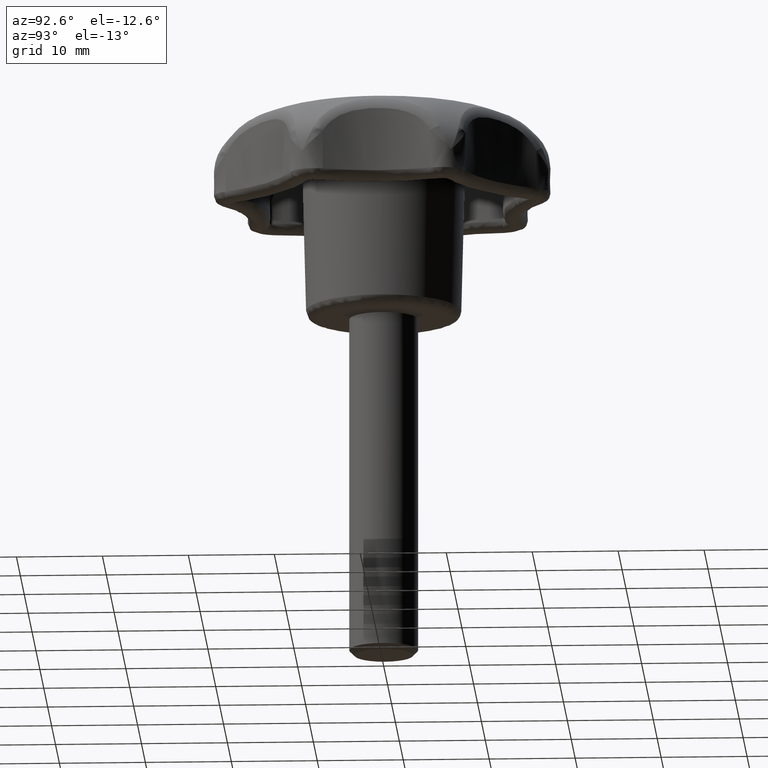
[diagram: clean part render]
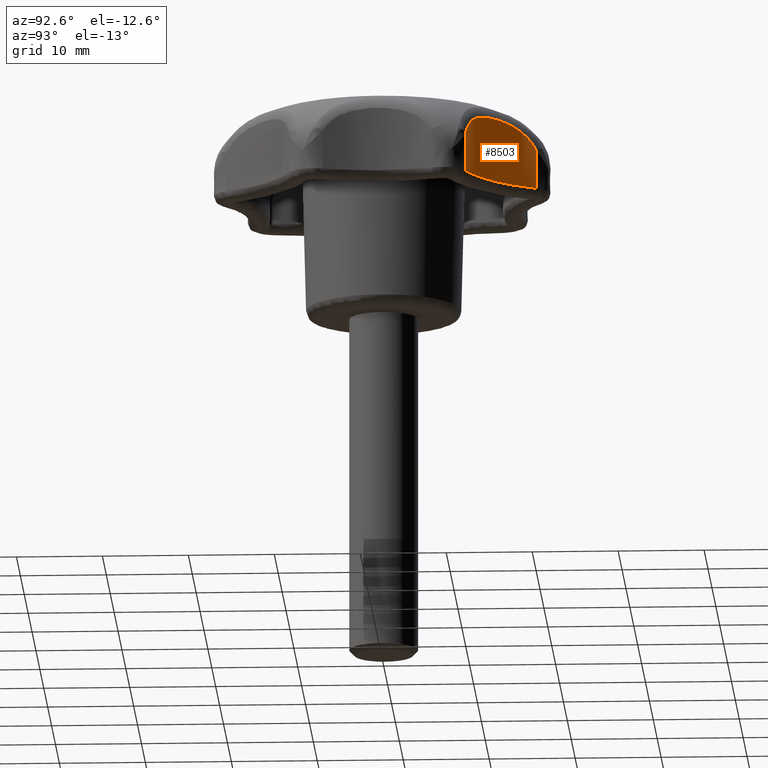
[diagram: same view with one face highlighted and labeled with its STEP entity id]
A machine part, auxiliary view. The second image highlights one B-rep face of the part: STEP entity #8503.
In plain terms, the highlighted face is a freeform B-spline surface patch.
Its self-contained STEP definition (entity closure, byte-faithful):
#4659=CARTESIAN_POINT('',(6.386493594074760,18.064099481105000,14.000000000000121));
#4660=VERTEX_POINT('',#4659);
#4791=CARTESIAN_POINT('',(16.190065745681299,10.246010887278899,14.000000000000121));
#4792=VERTEX_POINT('',#4791);
#4822=CARTESIAN_POINT('',(16.190065745681299,10.246010887278899,14.000000000000121));
#4823=CARTESIAN_POINT('',(9.737287684362029,12.210172921207995,14.000000000000115));
#4824=CARTESIAN_POINT('',(6.386493594074741,18.064099481104989,14.000000000000121));
#4832=(BOUNDED_CURVE()B_SPLINE_CURVE(2,(#4822,#4823,#4824),.UNSPECIFIED.,.F.,.U.)CURVE()GEOMETRIC_REPRESENTATION_ITEM()QUASI_UNIFORM_CURVE()RATIONAL_B_SPLINE_CURVE((1.0,0.929508310548779,1.0))REPRESENTATION_ITEM(''));
#4833=EDGE_CURVE('',#4792,#4660,#4832,.T.);
#6804=CARTESIAN_POINT('',(6.386493594074760,18.064099481105000,18.449536333602250));
#6805=VERTEX_POINT('',#6804);
#7046=CARTESIAN_POINT('',(16.190065745681299,10.246010887278899,18.449537729506851));
#7047=VERTEX_POINT('',#7046);
#7061=CARTESIAN_POINT('',(6.386493594074760,18.064099481105000,18.449536333602250));
#7062=CARTESIAN_POINT('',(6.461009213518576,17.933918709851710,18.724808553252359));
#7063=CARTESIAN_POINT('',(6.549328742009964,17.783552674995079,18.980416609653620));
#7064=CARTESIAN_POINT('',(6.703970696364555,17.531636849737978,19.336399882513721));
#7065=CARTESIAN_POINT('',(6.759232821654340,17.443245904756520,19.450463805623240));
#7066=CARTESIAN_POINT('',(6.848048594483785,17.304358264259211,19.614740555648840));
#7067=CARTESIAN_POINT('',(6.878642014134869,17.257011363362999,19.668361940667680));
#7068=CARTESIAN_POINT('',(6.941875978913854,17.160262004500591,19.773331655189661));
#7069=CARTESIAN_POINT('',(6.974557987169592,17.110800621065671,19.824727165410049));
#7070=CARTESIAN_POINT('',(7.141510336753920,16.861081282741011,20.073516651981809));
#7071=CARTESIAN_POINT('',(7.287600953781092,16.651753927779769,20.248603987769439));
#7072=CARTESIAN_POINT('',(7.526014623637359,16.327657571293461,20.480302371450669));
#7073=CARTESIAN_POINT('',(7.608704493231237,16.217929118728531,20.552358849332109));
#7074=CARTESIAN_POINT('',(7.737665651024440,16.051239794046740,20.653163998627470));
#7075=CARTESIAN_POINT('',(7.781553138874564,15.995227519035920,20.685606103287341));
#7076=CARTESIAN_POINT('',(7.870595301137325,15.883068037954089,20.747864537653179));
#7077=CARTESIAN_POINT('',(7.915676064423677,15.827010999242161,20.777636945965870));
#7078=CARTESIAN_POINT('',(8.143854212509133,15.546966962340100,20.920132171745809));
#7079=CARTESIAN_POINT('',(8.335261069005876,15.323738101561251,21.013885576322188));
#7080=CARTESIAN_POINT('',(8.735418177896897,14.881537581633360,21.169262364888411));
#7081=CARTESIAN_POINT('',(8.944167056096346,14.662557015004650,21.230864384380592));
#7082=CARTESIAN_POINT('',(9.215919393270118,14.392691180933429,21.291190468953101));
#7083=CARTESIAN_POINT('',(9.270811629253348,14.338909590197400,21.302415481524481));
#7084=CARTESIAN_POINT('',(9.381683248799780,14.231754413047881,21.323245272924940));
#7085=CARTESIAN_POINT('',(9.437688360460319,14.178358759220041,21.332851525777979));
#7086=CARTESIAN_POINT('',(9.606440819104435,14.019653597941749,21.359188922195770));
#7087=CARTESIAN_POINT('',(9.720214706388735,13.915542027663109,21.373504933144339));
#7088=CARTESIAN_POINT('',(10.065330351196231,13.608236926286811,21.407545286699609));
#7089=CARTESIAN_POINT('',(10.300464166854120,13.410068433634811,21.418464150883970));
#7090=CARTESIAN_POINT('',(10.780772619736430,13.027005841697930,21.418494620169501));
#7091=CARTESIAN_POINT('',(11.025947519264291,12.842112120573450,21.407604137423210));
#7092=CARTESIAN_POINT('',(11.526324496217800,12.485613435198911,21.362478190667581));
#7093=CARTESIAN_POINT('',(11.781656417139500,12.313926587075279,21.328234558821510));
#7094=CARTESIAN_POINT('',(12.301859578554181,11.984322529496611,21.231526668566389));
#7095=CARTESIAN_POINT('',(12.562680113358940,11.828975089099661,21.169777939208700));
#7096=CARTESIAN_POINT('',(13.083734405001550,11.536677810400841,21.014256277063350));
#7097=CARTESIAN_POINT('',(13.343975638568489,11.399731976194991,20.920499195633312));
#7098=CARTESIAN_POINT('',(13.667164772665100,11.239851387259600,20.778372619066420));
#7099=CARTESIAN_POINT('',(13.731694680225340,11.208440682663589,20.748693353991840));
#7100=CARTESIAN_POINT('',(13.860484558477181,11.146746328551551,20.686670776926679));
#7101=CARTESIAN_POINT('',(13.924867426024591,11.116406053272691,20.654261735849008));
#7102=CARTESIAN_POINT('',(14.116575034675790,11.027508033411950,20.553285017462731));
#7103=CARTESIAN_POINT('',(14.242127786304501,10.971217681859020,20.481170098820488));
#7104=CARTESIAN_POINT('',(14.611224562947170,10.810827006071399,20.249581360814940));
#7105=CARTESIAN_POINT('',(14.847253804912571,10.715194714201600,20.074934838766310));
#7106=CARTESIAN_POINT('',(15.126557430462009,10.608434238733160,19.827687531872911));
#7107=CARTESIAN_POINT('',(15.181627822812500,10.587722115374451,19.776785484072050));
#7108=CARTESIAN_POINT('',(15.290090329693980,10.547548968346030,19.671958426032958));
#7109=CARTESIAN_POINT('',(15.343569888045989,10.528057795885109,19.617930479414799));
#7110=CARTESIAN_POINT('',(15.499799060755070,10.471963459818040,19.452793134178641));
#7111=CARTESIAN_POINT('',(15.598815007033201,10.437556594935790,19.338211241486320));
#7112=CARTESIAN_POINT('',(15.880056226619070,10.342411153271200,18.980923202221138));
#7113=CARTESIAN_POINT('',(16.046586965522479,10.289684933681791,18.724772077706341));
#7114=CARTESIAN_POINT('',(16.190065745681299,10.246010887278899,18.449537729506851));
#7115=B_SPLINE_CURVE_WITH_KNOTS('',3,(#7061,#7062,#7063,#7064,#7065,#7066,#7067,#7068,#7069,#7070,#7071,#7072,#7073,#7074,#7075,#7076,#7077,#7078,#7079,#7080,#7081,#7082,#7083,#7084,#7085,#7086,#7087,#7088,#7089,#7090,#7091,#7092,#7093,#7094,#7095,#7096,#7097,#7098,#7099,#7100,#7101,#7102,#7103,#7104,#7105,#7106,#7107,#7108,#7109,#7110,#7111,#7112,#7113,#7114),.UNSPECIFIED.,.F.,.U.,(4,2,2,2,2,2,2,2,2,2,2,2,2,2,2,2,2,2,2,2,2,2,2,2,2,2,4),(0.0,0.062500000000000,0.093750000000001,0.109375000000001,0.125000000000001,0.187500000000000,0.218750000000000,0.234375000000000,0.250000000000000,0.312499999999999,0.374999999999999,0.390624999999999,0.406249999999999,0.437499999999999,0.500000000000000,0.562500000000000,0.625000000000000,0.687500000000001,0.750000000000001,0.765625000000001,0.781250000000001,0.812500000000001,0.875000000000002,0.890625000000001,0.906250000000001,0.937500000000001,1.0),.UNSPECIFIED.);
#7116=EDGE_CURVE('',#6805,#7047,#7115,.T.);
#8475=CARTESIAN_POINT('',(6.087634910912457,18.609086208690190,21.603941386520127));
#8476=CARTESIAN_POINT('',(6.087634910912457,18.609086208690190,13.809901465337116));
#8477=CARTESIAN_POINT('',(9.562985048213054,11.987248434442678,21.603941386520134));
#8478=CARTESIAN_POINT('',(9.562985048213054,11.987248434442678,13.809901465337118));
#8479=CARTESIAN_POINT('',(16.792697340480135,10.074644383330986,21.603941386520127));
#8480=CARTESIAN_POINT('',(16.792697340480135,10.074644383330986,13.809901465337123));
#8488=(BOUNDED_SURFACE()B_SPLINE_SURFACE(1,2,((#8475,#8477,#8479),(#8476,#8478,#8480)),.UNSPECIFIED.,.F.,.F.,.U.)B_SPLINE_SURFACE_WITH_KNOTS((2,2),(3,3),(0.0,7.794039921183009),(0.0,14.295723163969839),.UNSPECIFIED.)GEOMETRIC_REPRESENTATION_ITEM()RATIONAL_B_SPLINE_SURFACE(((0.999530633840841,0.911119867550313,0.991251856566015),(0.999530633840841,0.911119867550313,0.991251856566015)))REPRESENTATION_ITEM('')SURFACE());
#8489=CARTESIAN_POINT('',(16.190065745681299,10.246010887278899,18.449537729506851));
#8490=CARTESIAN_POINT('',(16.190065745681299,10.246010887278899,14.000000000000121));
#8491=QUASI_UNIFORM_CURVE('',1,(#8489,#8490),.UNSPECIFIED.,.F.,.U.);
#8492=EDGE_CURVE('',#7047,#4792,#8491,.T.);
#8493=ORIENTED_EDGE('',*,*,#8492,.T.);
#8494=ORIENTED_EDGE('',*,*,#4833,.T.);
#8495=CARTESIAN_POINT('',(6.386493594074760,18.064099481105000,18.449536333602250));
#8496=CARTESIAN_POINT('',(6.386493594074760,18.064099481105000,14.000000000000121));
#8497=QUASI_UNIFORM_CURVE('',1,(#8495,#8496),.UNSPECIFIED.,.F.,.U.);
#8498=EDGE_CURVE('',#6805,#4660,#8497,.T.);
#8499=ORIENTED_EDGE('',*,*,#8498,.F.);
#8500=ORIENTED_EDGE('',*,*,#7116,.T.);
#8501=EDGE_LOOP('',(#8493,#8494,#8499,#8500));
#8502=FACE_OUTER_BOUND('',#8501,.T.);
#8503=ADVANCED_FACE('',(#8502),#8488,.F.);